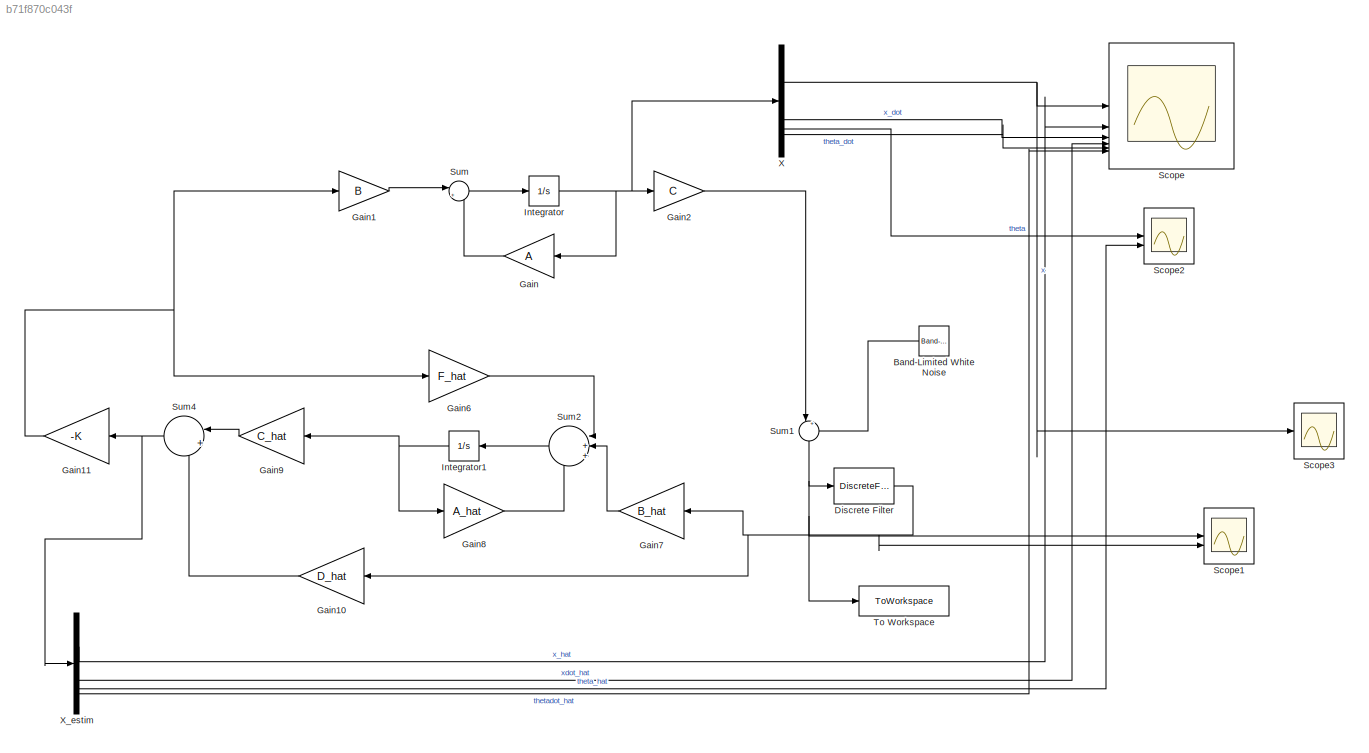
MODEL slx_b71f870c043f
KIND model
CONFIG AbsTol = auto
CONFIG EnableMultiTasking = off
CONFIG FixedStep = auto
CONFIG MaxStep = auto
CONFIG MinStep = auto
CONFIG RelTol = 1e-3
CONFIG SampleTimeConstraint = Unconstrained
CONFIG SolverName = VariableStepAuto
CONFIG StartTime = 0.0
CONFIG StopTime = 100
BLOCK [Reference] Band-Limited White Noise  REF=simulink/Sources/Band-Limited
White Noise
  SourceBlock = simulink/Sources/Band-Limited\nWhite Noise
  SourceType = Band-Limited White Noise.
BLOCK [DiscreteFilter] Discrete Filter
  CloseFcn = dspblkCoreblockFVToolHelper(gcbh,'close');
  CopyFcn = dspblkCoreblockFVToolHelper(gcbh,'copy');
  DeleteFcn = dspblkCoreblockFVToolHelper(gcbh,'close');
  Denominator = [a]
  InputPortMap = u0
  LoadFcn = dspblkCoreblockFVToolHelper(gcbh,'load');
  ModelCloseFcn = dspblkCoreblockFVToolHelper(gcbh,'close');
  Numerator = [b]
  PostSaveFcn = dspblkCoreblockFVToolHelper(gcbh,'postsave');
  PreSaveFcn = dspblkCoreblockFVToolHelper(gcbh,'presave');
BLOCK [Gain] Gain
  Gain = A
  Multiplication = Matrix(K*u)
BLOCK [Gain] Gain1
  Gain = B
  Multiplication = Matrix(K*u)
BLOCK [Gain] Gain10
  Gain = D_hat
  Multiplication = Matrix(K*u)
BLOCK [Gain] Gain11
  Gain = -K
  Multiplication = Matrix(K*u)
BLOCK [Gain] Gain2
  Gain = C
  Multiplication = Matrix(K*u)
BLOCK [Gain] Gain6
  Gain = F_hat
  Multiplication = Matrix(K*u)
BLOCK [Gain] Gain7
  Gain = B_hat
  Multiplication = Matrix(K*u)
BLOCK [Gain] Gain8
  Gain = A_hat
  Multiplication = Matrix(K*u)
BLOCK [Gain] Gain9
  Gain = C_hat
  Multiplication = Matrix(K*u)
BLOCK [Integrator] Integrator
  InitialCondition = x0
BLOCK [Integrator] Integrator1
  InitialCondition = x0_omin
BLOCK [Scope] Scope
  ActiveDisplayYMaximum = 0.055197898912851991
  ActiveDisplayYMinimum = -0.037800906184902339
  DisplayFullPath = on
  Floating = off
  FrameBasedProcessingString = Columns as channels (frame based)
  GraphicalSettings = {"Style":{"BackgroundColor":[0.12941176470588237,0.12941176470588237,0.12941176470588237],"AxesColor":[0.07058823529411765,0.07058823529411765,0.07058823529411765],"LabelsColor":[0.8509803921568627,0.8509803921568627,0.8509803921568627],"PreserveColors":false,"Visible":[true,true,true,true,true,true],"LineStyle":["-","-","-","-","-","-"],"LineWidth":[1.5,1.5,1.5,1.5,1.5,1.5],"BarWidth":[0.9,0.9,0....<+4168ch>
  LayoutDimensionsString = [2, 3]
  MultipleDisplayCache = [{"MaxYLimMag":0.055197898912851991,"MaxYLimReal":0.055197898912851991,"MinYLimMag":0,"MinYLimReal":-0.037800906184902339,"PlotAsMagnitudePhase":false,"ShowGrid":true,"ShowLegend":false,"Title":"%<SignalLabel>","YLabel":""},{"MaxYLimMag":0.30833284825384677,"MaxYLimReal":0.26070152913083566,"MinYLimMag":0,"MinYLimReal":-0.30833284825384677,"PlotAsMagnitudePhase":false,"ShowGrid":true,"ShowLegend":...<+926ch>
  NumInputPorts = 6
  SampleTime = 1e-4
  ScopeFrameLocation = window
  WasSavedAsWebScope = on
  WindowPosition = [-222.000000,-42.000000,1920.000000,991.000000,]
BLOCK [Scope] Scope1
  ActiveDisplayYMaximum = 0.10132926804150635
  ActiveDisplayYMinimum = -0.017776250388577511
  DataLoggingVariableName = ScopeData1
  DisplayFullPath = on
  Floating = off
  FrameBasedProcessingString = Columns as channels (frame based)
  GraphicalSettings = {"Style":{"BackgroundColor":[0.12941176470588237,0.12941176470588237,0.12941176470588237],"AxesColor":[0.07058823529411765,0.07058823529411765,0.07058823529411765],"LabelsColor":[0.8509803921568627,0.8509803921568627,0.8509803921568627],"PreserveColors":false,"Visible":[true,true],"LineStyle":["-","-"],"LineWidth":[1.5,1.5],"BarWidth":[0.9,0.9],"LineColor":["auto","auto"],"LineFaceAlpha":[1,1],"Li...<+2449ch>
  LayoutDimensionsString = [2,1]
  MultipleDisplayCache = [{"MaxYLimMag":0.10132926804150635,"MaxYLimReal":0.10132926804150635,"MinYLimMag":0,"MinYLimReal":-0.017776250388577511,"PlotAsMagnitudePhase":false,"ShowGrid":true,"ShowLegend":false,"Title":"%<SignalLabel>","YLabel":""},{"MaxYLimMag":0.09755433982999337,"MaxYLimReal":0.09755433982999337,"MinYLimMag":0,"MinYLimReal":-0.01526766764209034,"PlotAsMagnitudePhase":false,"ShowGrid":true,"ShowLegend":fa...<+42ch>
  NumInputPorts = 2
  SampleTime = 1e-4
  ScopeFrameLocation = window
  WasSavedAsWebScope = on
  WindowPosition = [1.000000,49.000000,1536.000000,793.000000,]
BLOCK [Scope] Scope2
  ActiveDisplayYMaximum = 0.020859803894727538
  ActiveDisplayYMinimum = -0.041102850477065939
  DataLoggingVariableName = ScopeData2
  DisplayFullPath = on
  Floating = off
  FrameBasedProcessingString = Columns as channels (frame based)
  GraphicalSettings = {"Style":{"BackgroundColor":[0.12941176470588237,0.12941176470588237,0.12941176470588237],"AxesColor":[0.07058823529411765,0.07058823529411765,0.07058823529411765],"LabelsColor":[0.8509803921568627,0.8509803921568627,0.8509803921568627],"PreserveColors":false,"Visible":[true,true],"LineStyle":["-","-"],"LineWidth":[1.5,1.5],"BarWidth":[0.9,0.9],"LineColor":["auto","auto"],"LineFaceAlpha":[1,1],"Li...<+2440ch>
  LayoutDimensionsString = [2,1]
  MultipleDisplayCache = [{"MaxYLimMag":0.041102850477065939,"MaxYLimReal":0.020859803894727538,"MinYLimMag":0,"MinYLimReal":-0.041102850477065939,"PlotAsMagnitudePhase":false,"ShowGrid":true,"ShowLegend":false,"Title":"%<SignalLabel>","YLabel":""},{"MaxYLimMag":0.051005588741841947,"MaxYLimReal":0.034330510001461353,"MinYLimMag":0,"MinYLimReal":-0.051005588741841947,"PlotAsMagnitudePhase":false,"ShowGrid":true,"ShowLegen...<+47ch>
  NumInputPorts = 2
  SampleTime = 1e-4
  ScopeFrameLocation = window
  WasSavedAsWebScope = on
  WindowPosition = [195.000000,84.000000,1147.000000,696.000000,]
BLOCK [Scope] Scope3
  ActiveDisplayYMaximum = 0.055219942526110913
  ActiveDisplayYMinimum = -0.03764065399801178
  DataLoggingVariableName = ScopeData3
  DisplayFullPath = on
  Floating = off
  FrameBasedProcessingString = Columns as channels (frame based)
  GraphicalSettings = {"Style":{"BackgroundColor":[0.12941176470588237,0.12941176470588237,0.12941176470588237],"AxesColor":[0.07058823529411765,0.07058823529411765,0.07058823529411765],"LabelsColor":[0.8509803921568627,0.8509803921568627,0.8509803921568627],"PreserveColors":false,"Visible":[true],"LineStyle":["-"],"LineWidth":[1.5],"BarWidth":[0.9],"LineColor":["auto"],"LineFaceAlpha":[1],"LineEdgeAlpha":[1],"Marker":...<+1995ch>
  LayoutDimensionsString = [1,1]
  MultipleDisplayCache = [{"MaxYLimMag":0.055219942526110913,"MaxYLimReal":0.055219942526110913,"MinYLimMag":0,"MinYLimReal":-0.03764065399801178,"PlotAsMagnitudePhase":false,"ShowGrid":true,"ShowLegend":false,"Title":"%<SignalLabel>","YLabel":""}]
  NumInputPorts = 1
  SampleTime = 1e-4
  ScopeFrameLocation = window
  WasSavedAsWebScope = on
  WindowPosition = [18.000000,34.000000,1148.000000,697.000000,]
BLOCK [Sum] Sum
  Inputs = |++
BLOCK [Sum] Sum1
  Inputs = |++
  NameLocation = left
BLOCK [Sum] Sum2
  Inputs = |+++
BLOCK [Sum] Sum4
  Inputs = |++
BLOCK [ToWorkspace] To Workspace
  FixptAsFi = on
  MaxDataPoints = inf
  SampleTime = 1e-4
  SaveFormat = Structure With Time
  VariableName = y_noise
BLOCK [Demux] X
BLOCK [Demux] X_estim
LINE Band-Limited White Noise:1 -> Sum1:2
NET Discrete Filter:1 -> Gain10:1, Gain7:1, Scope1:2
LINE Gain10:1 -> Sum4:2
NET Gain11:1 -> Gain1:1, Gain6:1
LINE Gain1:1 -> Sum:1
LINE Gain2:1 -> Sum1:1
LINE Gain6:1 -> Sum2:1
LINE Gain7:1 -> Sum2:2
LINE Gain8:1 -> Sum2:3
LINE Gain9:1 -> Sum4:1
LINE Gain:1 -> Sum:2
NET Integrator1:1 -> Gain8:1, Gain9:1
NET Integrator:1 -> Gain2:1, Gain:1, X:1
NET Sum1:1 -> Discrete Filter:1, Scope1:1, To Workspace:1
LINE Sum2:1 -> Integrator1:1
NET Sum4:1 -> Gain11:1, X_estim:1
LINE Sum:1 -> Integrator:1
NET X:1 -> Scope3:1, Scope:1
LINE X:2 -> Scope:3
LINE X:3 -> Scope2:1
LINE X:4 -> Scope:5
LINE X_estim:1 -> Scope:2
LINE X_estim:2 -> Scope:4
LINE X_estim:3 -> Scope2:2
LINE X_estim:4 -> Scope:6
note: NET lines group one-source signal fan-out (src -> all destinations, sorted); 1:1 wires keep LINE
